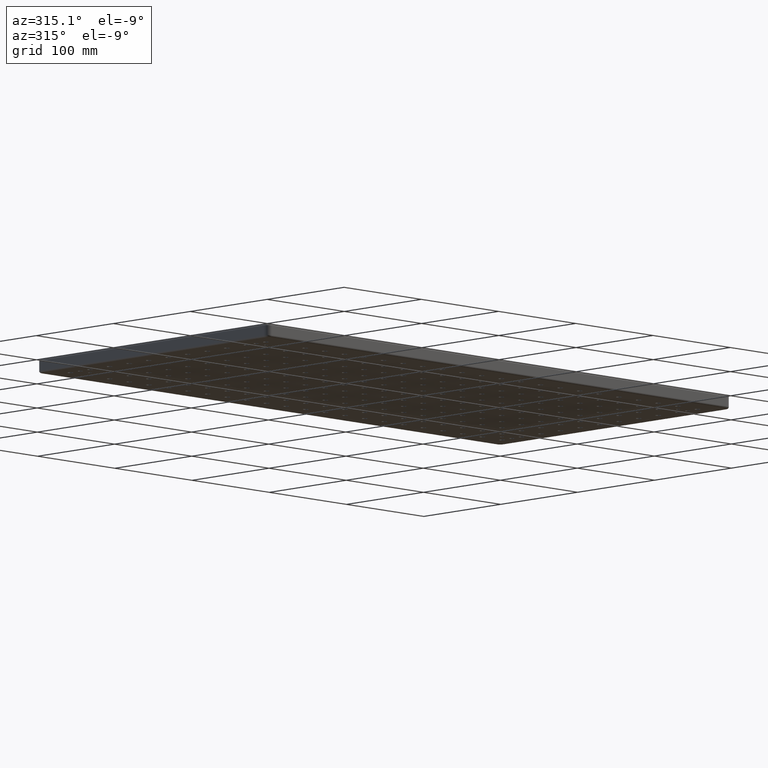
[diagram: clean part render]
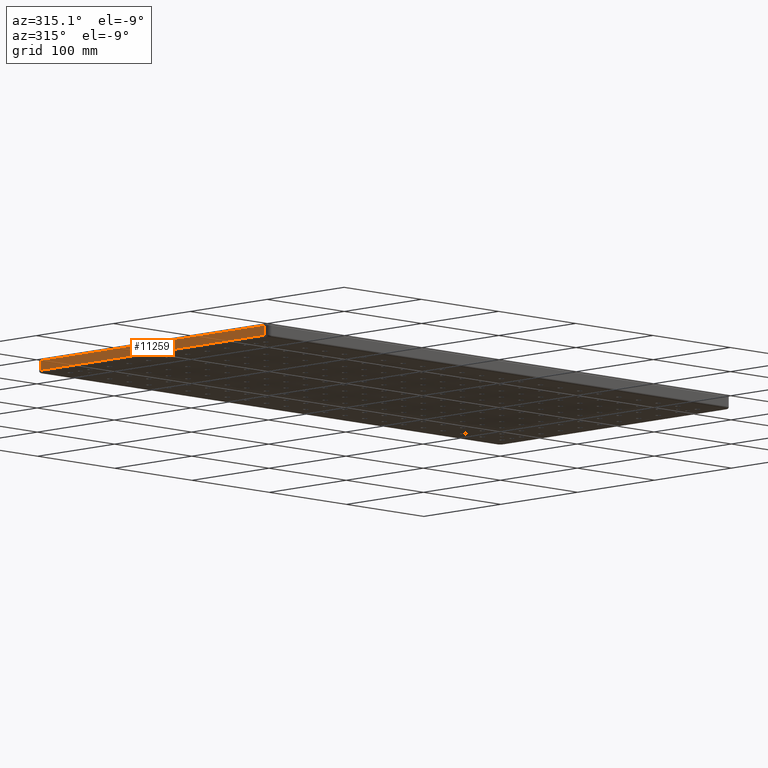
[diagram: same view with one face highlighted and labeled with its STEP entity id]
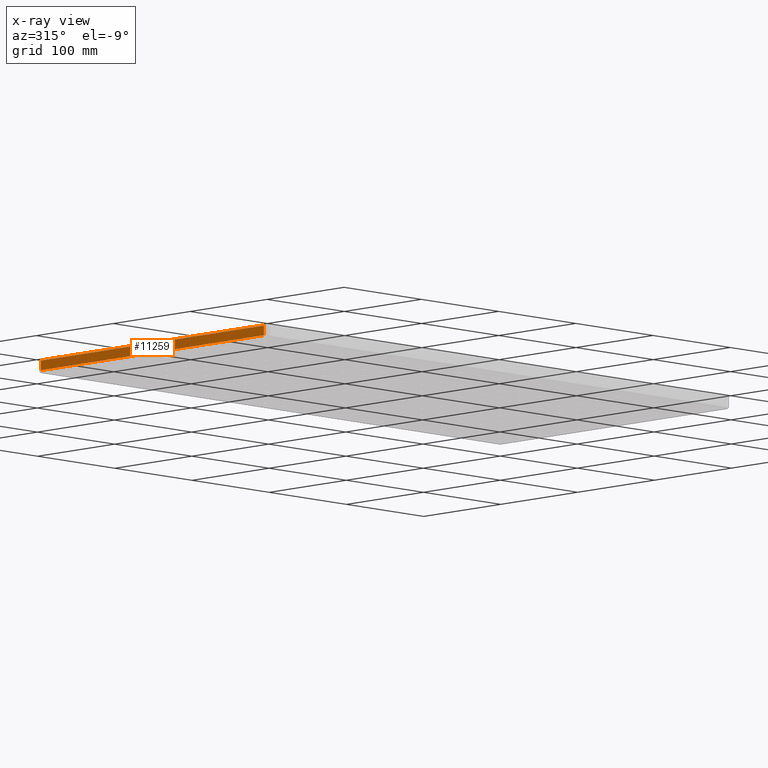
[diagram: x-ray of the same camera — body ghosted, the highlighted face saturated]
A machine part, auxiliary view. The second image highlights one B-rep face of the part: STEP entity #11259.
The next image is the same camera in x-ray: the body ghosted, the highlighted face saturated — about 0% of this face is hidden behind the body in this view.
In plain terms, the highlighted planar face has unit normal (-1, 0, 0).
Its self-contained STEP definition (entity closure, byte-faithful):
#239 = LINE ( 'NONE', #16031, #11085 ) ;
#566 = VERTEX_POINT ( 'NONE', #12204 ) ;
#1236 = DIRECTION ( 'NONE',  ( -0.0000000000000000000, -0.0000000000000000000, -1.000000000000000000 ) ) ;
#2126 = EDGE_CURVE ( 'NONE', #13287, #9477, #12969, .T. ) ;
#2570 = VERTEX_POINT ( 'NONE', #13559 ) ;
#2840 = AXIS2_PLACEMENT_3D ( 'NONE', #17117, #6165, #3056 ) ;
#2974 = CARTESIAN_POINT ( 'NONE',  ( 0.0000000000000000000, 295.0000000000000000, -11.00000000000000000 ) ) ;
#3056 = DIRECTION ( 'NONE',  ( 0.0000000000000000000, 0.0000000000000000000, 1.000000000000000000 ) ) ;
#3469 = ORIENTED_EDGE ( 'NONE', *, *, #9325, .T. ) ;
#4146 = DIRECTION ( 'NONE',  ( 0.0000000000000000000, 0.0000000000000000000, 1.000000000000000000 ) ) ;
#6165 = DIRECTION ( 'NONE',  ( -1.000000000000000000, 0.0000000000000000000, 0.0000000000000000000 ) ) ;
#7867 = CARTESIAN_POINT ( 'NONE',  ( 0.0000000000000000000, 295.0000000000000000, -13.00000000000000000 ) ) ;
#8636 = DIRECTION ( 'NONE',  ( 0.0000000000000000000, -1.000000000000000000, 0.0000000000000000000 ) ) ;
#9325 = EDGE_CURVE ( 'NONE', #2570, #13287, #239, .T. ) ;
#9435 = EDGE_LOOP ( 'NONE', ( #12685, #15214, #19158, #3469 ) ) ;
#9477 = VERTEX_POINT ( 'NONE', #2974 ) ;
#10322 = VECTOR ( 'NONE', #4146, 1000.000000000000000 ) ;
#10499 = FACE_OUTER_BOUND ( 'NONE', #9435, .T. ) ;
#11085 = VECTOR ( 'NONE', #16100, 1000.000000000000000 ) ;
#11259 = ADVANCED_FACE ( 'NONE', ( #10499 ), #12420, .T. ) ;
#11677 = VECTOR ( 'NONE', #8636, 1000.000000000000000 ) ;
#12204 = CARTESIAN_POINT ( 'NONE',  ( 0.0000000000000000000, 4.999999999999998200, -11.00000000000000000 ) ) ;
#12420 = PLANE ( 'NONE',  #2840 ) ;
#12685 = ORIENTED_EDGE ( 'NONE', *, *, #2126, .T. ) ;
#12969 = LINE ( 'NONE', #7867, #15212 ) ;
#13287 = VERTEX_POINT ( 'NONE', #15306 ) ;
#13559 = CARTESIAN_POINT ( 'NONE',  ( 0.0000000000000000000, 4.999999999999998200, -2.000000000000000000 ) ) ;
#14152 = LINE ( 'NONE', #18270, #11677 ) ;
#14333 = EDGE_CURVE ( 'NONE', #566, #2570, #15240, .T. ) ;
#15212 = VECTOR ( 'NONE', #1236, 1000.000000000000000 ) ;
#15214 = ORIENTED_EDGE ( 'NONE', *, *, #19735, .T. ) ;
#15240 = LINE ( 'NONE', #19783, #10322 ) ;
#15306 = CARTESIAN_POINT ( 'NONE',  ( 0.0000000000000000000, 295.0000000000000000, -2.000000000000000000 ) ) ;
#16031 = CARTESIAN_POINT ( 'NONE',  ( 0.0000000000000000000, 295.0000000000000000, -2.000000000000000000 ) ) ;
#16100 = DIRECTION ( 'NONE',  ( -0.0000000000000000000, 1.000000000000000000, -0.0000000000000000000 ) ) ;
#17117 = CARTESIAN_POINT ( 'NONE',  ( 0.0000000000000000000, 0.0000000000000000000, -13.00000000000000000 ) ) ;
#18270 = CARTESIAN_POINT ( 'NONE',  ( 0.0000000000000000000, 0.0000000000000000000, -11.00000000000000000 ) ) ;
#19158 = ORIENTED_EDGE ( 'NONE', *, *, #14333, .T. ) ;
#19735 = EDGE_CURVE ( 'NONE', #9477, #566, #14152, .T. ) ;
#19783 = CARTESIAN_POINT ( 'NONE',  ( 0.0000000000000000000, 4.999999999999998200, -13.00000000000000000 ) ) ;